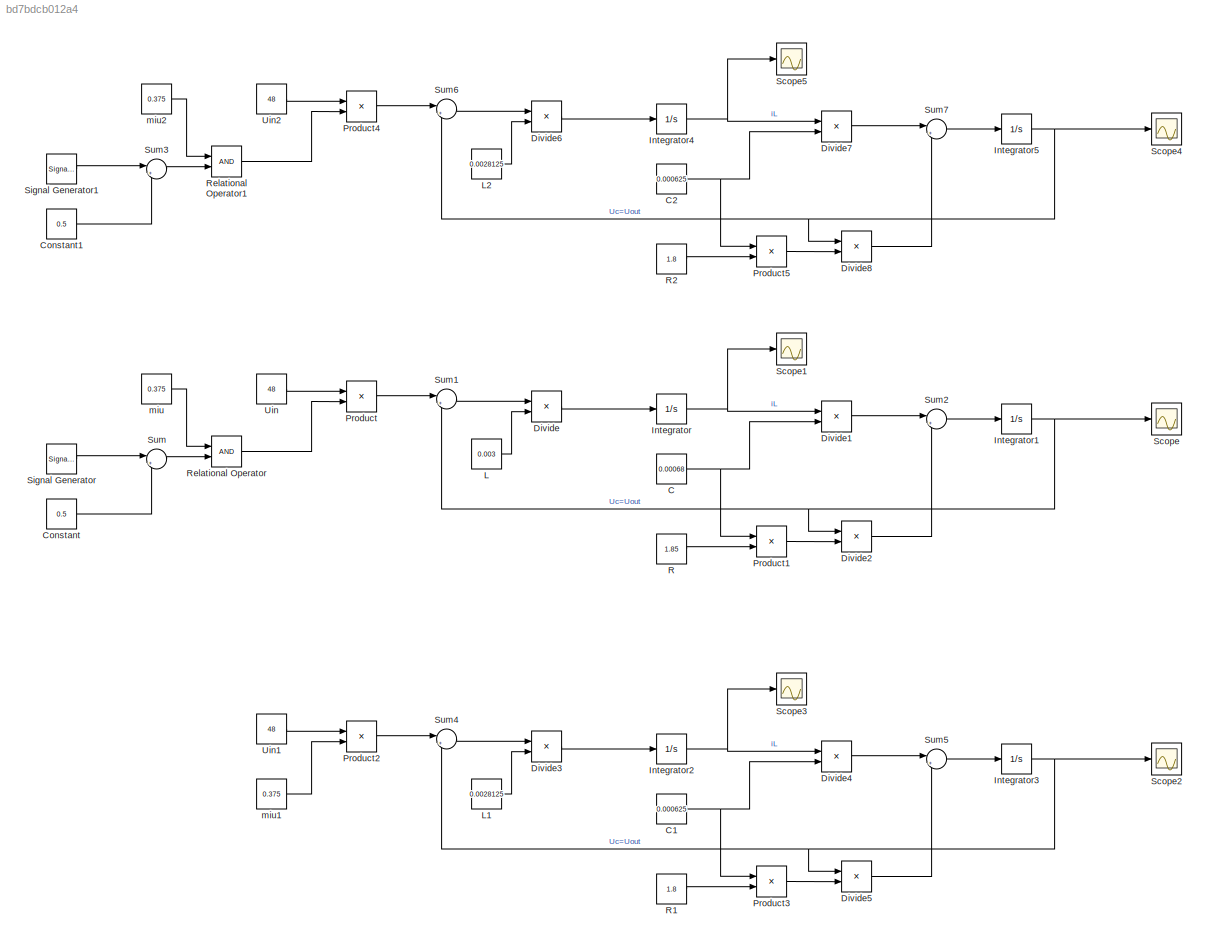
MODEL slx_bd7bdcb012a4
KIND model
CONFIG AbsTol = auto
CONFIG EnableMultiTasking = off
CONFIG FixedStep = 1e-6
CONFIG MaxStep = auto
CONFIG MinStep = auto
CONFIG RelTol = 1e-3
CONFIG SampleTimeConstraint = Unconstrained
CONFIG SolverName = FixedStepAuto
CONFIG StartTime = 0.0
CONFIG StopTime = 0.1
BLOCK [Constant] C
  Value = 0.00068
BLOCK [Constant] C1
  Value = 0.000625
BLOCK [Constant] C2
  Value = 0.000625
BLOCK [Constant] Constant
  Value = 0.5
BLOCK [Constant] Constant1
  Value = 0.5
BLOCK [Product] Divide
  Inputs = */
BLOCK [Product] Divide1
  Inputs = */
BLOCK [Product] Divide2
  Inputs = */
BLOCK [Product] Divide3
  Inputs = */
BLOCK [Product] Divide4
  Inputs = */
BLOCK [Product] Divide5
  Inputs = */
BLOCK [Product] Divide6
  Inputs = */
BLOCK [Product] Divide7
  Inputs = */
BLOCK [Product] Divide8
  Inputs = */
BLOCK [Integrator] Integrator
BLOCK [Integrator] Integrator1
BLOCK [Integrator] Integrator2
BLOCK [Integrator] Integrator3
BLOCK [Integrator] Integrator4
BLOCK [Integrator] Integrator5
BLOCK [Constant] L
  Value = 0.003
BLOCK [Constant] L1
  Value = 0.0028125
BLOCK [Constant] L2
  Value = 0.0028125
BLOCK [Product] Product
BLOCK [Product] Product1
BLOCK [Product] Product2
BLOCK [Product] Product3
BLOCK [Product] Product4
BLOCK [Product] Product5
BLOCK [Constant] R
  Value = 1.85
BLOCK [Constant] R1
  Value = 1.8
BLOCK [Constant] R2
  Value = 1.8
BLOCK [RelationalOperator] Relational Operator
  InputSameDT = off
  OutDataTypeStr = boolean
  RndMeth = Simplest
BLOCK [RelationalOperator] Relational Operator1
  InputSameDT = off
  OutDataTypeStr = boolean
  RndMeth = Simplest
BLOCK [Scope] Scope
  Floating = off
  NumInputPorts = 1
  ScopeSpecificationString = Simulink.scopes.TimeScopeBlockCfg('CurrentConfiguration', extmgr.ConfigurationSet(extmgr.Configuration('Core','General UI',true),extmgr.Configuration('Core','Source UI',true),extmgr.Configuration('Sources','WiredSimulink',true,'DataLoggingVariableName','ScopeData1'),extmgr.Configuration('Visuals','Time Domain',true,'SerializedDisplays',{struct('MinYLimReal','17.46271','MaxYLimReal','18.32795','YLa...<+1839ch>
BLOCK [Scope] Scope1
  Floating = off
  NumInputPorts = 1
  ScopeSpecificationString = Simulink.scopes.TimeScopeBlockCfg('CurrentConfiguration', extmgr.ConfigurationSet(extmgr.Configuration('Core','General UI',true),extmgr.Configuration('Core','Source UI',true),extmgr.Configuration('Sources','WiredSimulink',true,'DataLoggingVariableName','ScopeData2'),extmgr.Configuration('Visuals','Time Domain',true,'SerializedDisplays',{struct('MinYLimReal','6.75342','MaxYLimReal','12.50088','YLab...<+1830ch>
BLOCK [Scope] Scope2
  Floating = off
  NumInputPorts = 1
  ScopeSpecificationString = Simulink.scopes.TimeScopeBlockCfg('CurrentConfiguration', extmgr.ConfigurationSet(extmgr.Configuration('Core','General UI',true),extmgr.Configuration('Core','Source UI',true),extmgr.Configuration('Sources','WiredSimulink',true,'DataLoggingVariableName','ScopeData3'),extmgr.Configuration('Visuals','Time Domain',true,'SerializedDisplays',{struct('MinYLimReal','-2.31384','MaxYLimReal','20.8246','YLab...<+1532ch>
BLOCK [Scope] Scope3
  Floating = off
  NumInputPorts = 1
  ScopeSpecificationString = Simulink.scopes.TimeScopeBlockCfg('CurrentConfiguration', extmgr.ConfigurationSet(extmgr.Configuration('Core','General UI',true),extmgr.Configuration('Core','Source UI',true),extmgr.Configuration('Sources','WiredSimulink',true,'DataLoggingVariableName','ScopeData4'),extmgr.Configuration('Visuals','Time Domain',true,'SerializedDisplays',{struct('MinYLimReal','12.63121','MaxYLimReal','25.17197','YLa...<+1504ch>
BLOCK [Scope] Scope4
  Floating = off
  NumInputPorts = 1
  ScopeSpecificationString = Simulink.scopes.TimeScopeBlockCfg('CurrentConfiguration', extmgr.ConfigurationSet(extmgr.Configuration('Core','General UI',true),extmgr.Configuration('Core','Source UI',true),extmgr.Configuration('Sources','WiredSimulink',true,'DataLoggingVariableName','ScopeData5'),extmgr.Configuration('Visuals','Time Domain',true,'SerializedDisplays',{struct('MinYLimReal','17.68016','MaxYLimReal','18.33002','YLa...<+1839ch>
BLOCK [Scope] Scope5
  Floating = off
  NumInputPorts = 1
  ScopeSpecificationString = Simulink.scopes.TimeScopeBlockCfg('CurrentConfiguration', extmgr.ConfigurationSet(extmgr.Configuration('Core','General UI',true),extmgr.Configuration('Core','Source UI',true),extmgr.Configuration('Sources','WiredSimulink',true),extmgr.Configuration('Visuals','Time Domain',true,'SerializedDisplays',{struct('MinYLimReal','7.55297','MaxYLimReal','12.76335','YLabelReal','','MinYLimMag','7.55297','MaxY...<+1815ch>
BLOCK [SignalGenerator] Signal Generator
  Amplitude = 0.5
  Frequency = 1500
  WaveForm = sawtooth
BLOCK [SignalGenerator] Signal Generator1
  Amplitude = 0.5
  Frequency = 1500
  WaveForm = sawtooth
BLOCK [Sum] Sum
  Inputs = |++
BLOCK [Sum] Sum1
  Inputs = |+-
BLOCK [Sum] Sum2
  Inputs = |+-
BLOCK [Sum] Sum3
  Inputs = |++
BLOCK [Sum] Sum4
  Inputs = |+-
BLOCK [Sum] Sum5
  Inputs = |+-
BLOCK [Sum] Sum6
  Inputs = |+-
BLOCK [Sum] Sum7
  Inputs = |+-
BLOCK [Constant] Uin
  Value = 48
BLOCK [Constant] Uin1
  Value = 48
BLOCK [Constant] Uin2
  Value = 48
BLOCK [Constant] miu
  Value = 0.375
BLOCK [Constant] miu1
  Value = 0.375
BLOCK [Constant] miu2
  Value = 0.375
NET C1:1 -> Divide4:2, Product3:1
NET C2:1 -> Divide7:2, Product5:1
NET C:1 -> Divide1:2, Product1:1
LINE Constant1:1 -> Sum3:2
LINE Constant:1 -> Sum:2
LINE Divide1:1 -> Sum2:1
LINE Divide2:1 -> Sum2:2
LINE Divide3:1 -> Integrator2:1
LINE Divide4:1 -> Sum5:1
LINE Divide5:1 -> Sum5:2
LINE Divide6:1 -> Integrator4:1
LINE Divide7:1 -> Sum7:1
LINE Divide8:1 -> Sum7:2
LINE Divide:1 -> Integrator:1
NET Integrator1:1 -> Divide2:1, Scope:1, Sum1:2
NET Integrator2:1 -> Divide4:1, Scope3:1
NET Integrator3:1 -> Divide5:1, Scope2:1, Sum4:2
NET Integrator4:1 -> Divide7:1, Scope5:1
NET Integrator5:1 -> Divide8:1, Scope4:1, Sum6:2
NET Integrator:1 -> Divide1:1, Scope1:1
LINE L1:1 -> Divide3:2
LINE L2:1 -> Divide6:2
LINE L:1 -> Divide:2
LINE Product1:1 -> Divide2:2
LINE Product2:1 -> Sum4:1
LINE Product3:1 -> Divide5:2
LINE Product4:1 -> Sum6:1
LINE Product5:1 -> Divide8:2
LINE Product:1 -> Sum1:1
LINE R1:1 -> Product3:2
LINE R2:1 -> Product5:2
LINE R:1 -> Product1:2
LINE Relational Operator1:1 -> Product4:2
LINE Relational Operator:1 -> Product:2
LINE Signal Generator1:1 -> Sum3:1
LINE Signal Generator:1 -> Sum:1
LINE Sum1:1 -> Divide:1
LINE Sum2:1 -> Integrator1:1
LINE Sum3:1 -> Relational Operator1:2
LINE Sum4:1 -> Divide3:1
LINE Sum5:1 -> Integrator3:1
LINE Sum6:1 -> Divide6:1
LINE Sum7:1 -> Integrator5:1
LINE Sum:1 -> Relational Operator:2
LINE Uin1:1 -> Product2:1
LINE Uin2:1 -> Product4:1
LINE Uin:1 -> Product:1
LINE miu1:1 -> Product2:2
LINE miu2:1 -> Relational Operator1:1
LINE miu:1 -> Relational Operator:1
note: NET lines group one-source signal fan-out (src -> all destinations, sorted); 1:1 wires keep LINE
